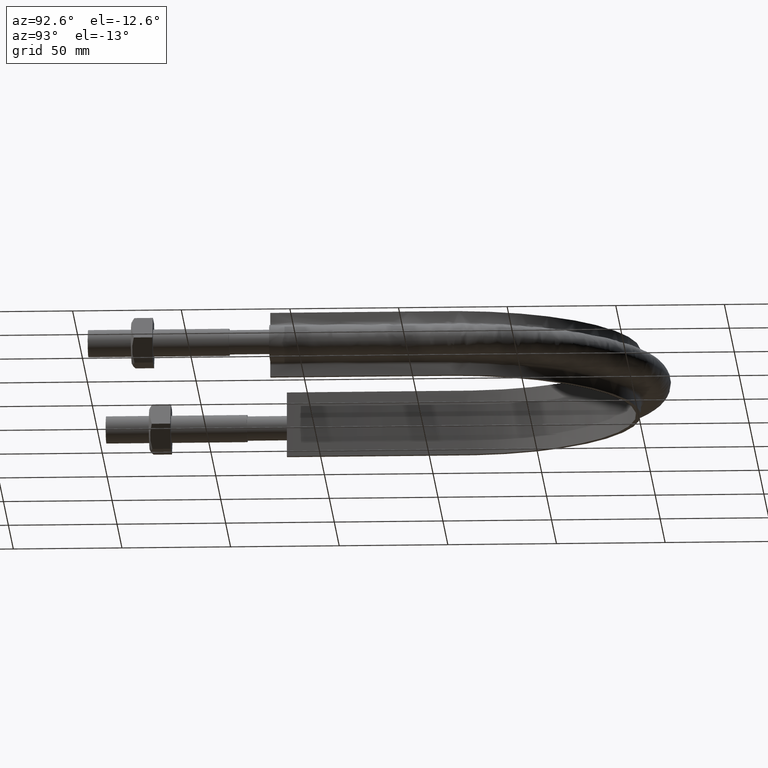
[diagram: clean part render]
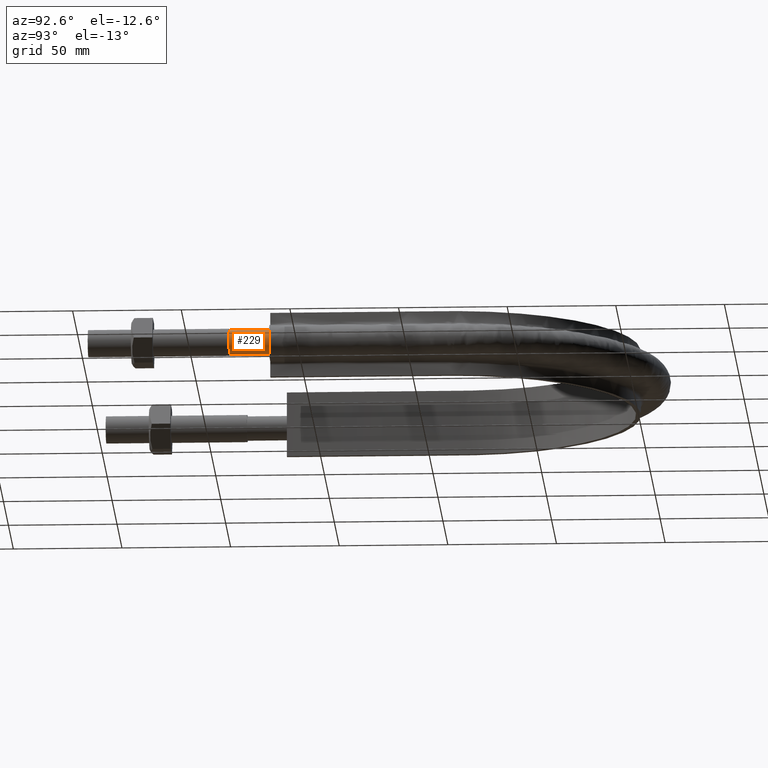
[diagram: same view with one face highlighted and labeled with its STEP entity id]
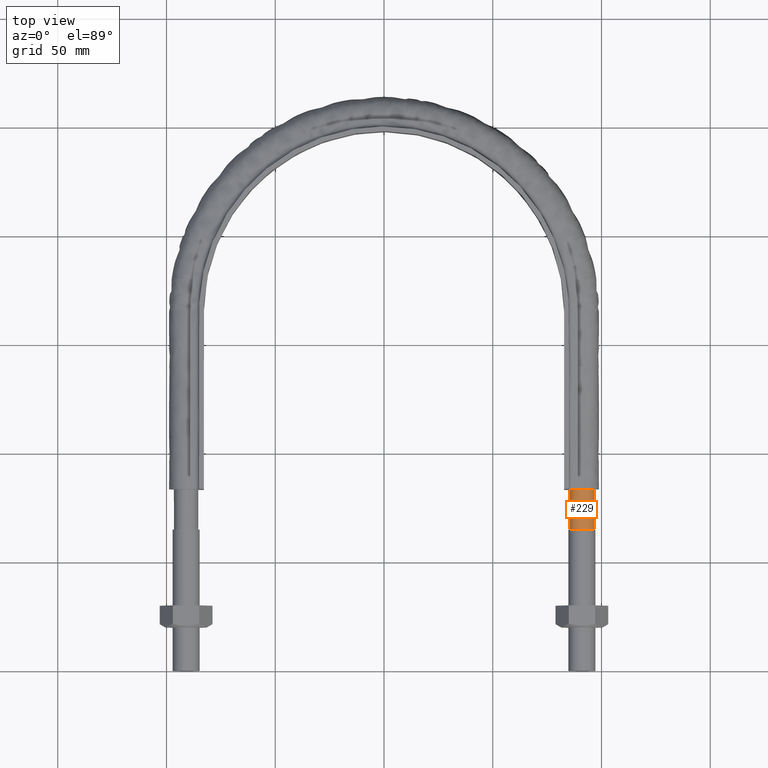
[diagram: same view with one face highlighted and labeled with its STEP entity id]
A machine part, auxiliary view. The second image highlights one B-rep face of the part: STEP entity #229.
A second angle (top view) of the same face is appended — the face is thin or edge-on in the first view.
In plain terms, the highlighted cylindrical surface (bore or boss wall) has radius 5.6 mm, axis along (0, 1, -0).
Its self-contained STEP definition (entity closure, byte-faithful):
#229 = ADVANCED_FACE( '', ( #285, #286 ), #287, .T. );
#285 = FACE_OUTER_BOUND( '', #1286, .T. );
#286 = FACE_OUTER_BOUND( '', #1287, .T. );
#287 = CYLINDRICAL_SURFACE( '', #1288, 5.59999999999999 );
#1286 = EDGE_LOOP( '', ( #1453, #1454, #1455, #1456, #1457, #1458, #1459, #1460 ) );
#1287 = EDGE_LOOP( '', ( #1461 ) );
#1288 = AXIS2_PLACEMENT_3D( '', #1462, #1463, #1464 );
#1453 = ORIENTED_EDGE( '', *, *, #1680, .F. );
#1454 = ORIENTED_EDGE( '', *, *, #1679, .F. );
#1455 = ORIENTED_EDGE( '', *, *, #1678, .F. );
#1456 = ORIENTED_EDGE( '', *, *, #1677, .F. );
#1457 = ORIENTED_EDGE( '', *, *, #1684, .F. );
#1458 = ORIENTED_EDGE( '', *, *, #1683, .F. );
#1459 = ORIENTED_EDGE( '', *, *, #1682, .F. );
#1460 = ORIENTED_EDGE( '', *, *, #1681, .F. );
#1461 = ORIENTED_EDGE( '', *, *, #1685, .T. );
#1462 = CARTESIAN_POINT( '', ( 91.0000000000000, 83.5000000000000, -1.51545036285519E-014 ) );
#1463 = DIRECTION( '', ( 2.44921270764475E-016, 1.00000000000000, -3.06151588455594E-016 ) );
#1464 = DIRECTION( '', ( 1.00000000000000, -2.44921270764475E-016, 0.000000000000000 ) );
#1677 = EDGE_CURVE( '', #1779, #1780, #1781, .T. );
#1678 = EDGE_CURVE( '', #1780, #1782, #1783, .T. );
#1679 = EDGE_CURVE( '', #1782, #1784, #1785, .T. );
#1680 = EDGE_CURVE( '', #1784, #1786, #1787, .T. );
#1681 = EDGE_CURVE( '', #1786, #1788, #1789, .T. );
#1682 = EDGE_CURVE( '', #1788, #1790, #1791, .T. );
#1683 = EDGE_CURVE( '', #1790, #1792, #1793, .T. );
#1684 = EDGE_CURVE( '', #1792, #1779, #1794, .T. );
#1685 = EDGE_CURVE( '', #1795, #1795, #1796, .F. );
#1779 = VERTEX_POINT( '', #2101 );
#1780 = VERTEX_POINT( '', #2102 );
#1781 = B_SPLINE_CURVE_WITH_KNOTS( '', 3, ( #2103, #2104, #2105, #2106 ), .UNSPECIFIED., .F., .F., ( 4, 4 ), ( 0.000000000000000, 1.00000000000000 ), .UNSPECIFIED. );
#1782 = VERTEX_POINT( '', #2107 );
#1783 = B_SPLINE_CURVE_WITH_KNOTS( '', 3, ( #2108, #2109, #2110, #2111 ), .UNSPECIFIED., .F., .F., ( 4, 4 ), ( 0.000000000000000, 1.00000000000000 ), .UNSPECIFIED. );
#1784 = VERTEX_POINT( '', #2112 );
#1785 = B_SPLINE_CURVE_WITH_KNOTS( '', 3, ( #2113, #2114, #2115, #2116 ), .UNSPECIFIED., .F., .F., ( 4, 4 ), ( 0.000000000000000, 1.00000000000000 ), .UNSPECIFIED. );
#1786 = VERTEX_POINT( '', #2117 );
#1787 = B_SPLINE_CURVE_WITH_KNOTS( '', 3, ( #2118, #2119, #2120, #2121 ), .UNSPECIFIED., .F., .F., ( 4, 4 ), ( 0.000000000000000, 1.00000000000000 ), .UNSPECIFIED. );
#1788 = VERTEX_POINT( '', #2122 );
#1789 = B_SPLINE_CURVE_WITH_KNOTS( '', 3, ( #2123, #2124, #2125, #2126 ), .UNSPECIFIED., .F., .F., ( 4, 4 ), ( 0.000000000000000, 1.00000000000000 ), .UNSPECIFIED. );
#1790 = VERTEX_POINT( '', #2127 );
#1791 = B_SPLINE_CURVE_WITH_KNOTS( '', 3, ( #2128, #2129, #2130, #2131 ), .UNSPECIFIED., .F., .F., ( 4, 4 ), ( 0.000000000000000, 1.00000000000000 ), .UNSPECIFIED. );
#1792 = VERTEX_POINT( '', #2132 );
#1793 = B_SPLINE_CURVE_WITH_KNOTS( '', 3, ( #2133, #2134, #2135, #2136 ), .UNSPECIFIED., .F., .F., ( 4, 4 ), ( 0.000000000000000, 1.00000000000000 ), .UNSPECIFIED. );
#1794 = B_SPLINE_CURVE_WITH_KNOTS( '', 3, ( #2137, #2138, #2139, #2140 ), .UNSPECIFIED., .F., .F., ( 4, 4 ), ( 0.000000000000000, 1.00000000000000 ), .UNSPECIFIED. );
#1795 = VERTEX_POINT( '', #2141 );
#1796 = CIRCLE( '', #2142, 5.59999999999999 );
#2101 = CARTESIAN_POINT( '', ( 85.4000000000000, 83.5000000000003, -6.57793329442030E-014 ) );
#2102 = CARTESIAN_POINT( '', ( 87.0402020253551, 83.5000000000000, 3.95979797464437 ) );
#2103 = CARTESIAN_POINT( '', ( 85.4000000000000, 83.5000000000003, -1.08420217248550E-016 ) );
#2104 = CARTESIAN_POINT( '', ( 85.4000000000000, 83.5000000000003, 1.46274169979682 ) );
#2105 = CARTESIAN_POINT( '', ( 86.0058874503045, 83.5000000000003, 2.92548339959365 ) );
#2106 = CARTESIAN_POINT( '', ( 87.0402020253551, 83.5000000000003, 3.95979797464439 ) );
#2107 = CARTESIAN_POINT( '', ( 90.9999999999999, 83.5000000000000, 5.59999999999998 ) );
#2108 = CARTESIAN_POINT( '', ( 87.0402020253789, 83.5000000000003, 3.95979797466821 ) );
#2109 = CARTESIAN_POINT( '', ( 88.0745166004340, 83.5000000000003, 4.99411254971025 ) );
#2110 = CARTESIAN_POINT( '', ( 89.5372583002356, 83.5000000000003, 5.60000000000889 ) );
#2111 = CARTESIAN_POINT( '', ( 91.0000000000360, 83.5000000000003, 5.59999999999961 ) );
#2112 = CARTESIAN_POINT( '', ( 94.9597979746584, 83.5000000000000, 3.95979797463088 ) );
#2113 = CARTESIAN_POINT( '', ( 90.9999999999999, 83.5000000000003, 5.59999999999999 ) );
#2114 = CARTESIAN_POINT( '', ( 92.4627416998033, 83.5000000000003, 5.60000000000002 ) );
#2115 = CARTESIAN_POINT( '', ( 93.9254833996068, 83.5000000000003, 4.99411254969010 ) );
#2116 = CARTESIAN_POINT( '', ( 94.9597979746584, 83.5000000000003, 3.95979797463099 ) );
#2117 = CARTESIAN_POINT( '', ( 96.6000000000000, 83.5000000000000, -1.51545036285519E-014 ) );
#2118 = CARTESIAN_POINT( '', ( 94.9597979746585, 83.5000000000003, 3.95979797463086 ) );
#2119 = CARTESIAN_POINT( '', ( 95.9941125497084, 83.5000000000003, 2.92548339957330 ) );
#2120 = CARTESIAN_POINT( '', ( 96.6000000000103, 83.5000000000003, 1.46274169976572 ) );
#2121 = CARTESIAN_POINT( '', ( 96.5999999999998, 83.5000000000003, -3.92493902395374E-011 ) );
#2122 = CARTESIAN_POINT( '', ( 94.9597979746457, 83.5000000000000, -3.95979797464368 ) );
#2123 = CARTESIAN_POINT( '', ( 96.6000000000000, 83.5000000000002, -1.81387953856294E-011 ) );
#2124 = CARTESIAN_POINT( '', ( 96.5999999999950, 83.5000000000002, -1.46274169981296 ) );
#2125 = CARTESIAN_POINT( '', ( 95.9941125496867, 83.5000000000002, -2.92548339960903 ) );
#2126 = CARTESIAN_POINT( '', ( 94.9597979746316, 83.5000000000002, -3.95979797465745 ) );
#2127 = CARTESIAN_POINT( '', ( 91.0000000000002, 83.5000000000000, -5.60000000000001 ) );
#2128 = CARTESIAN_POINT( '', ( 94.9597979746456, 83.5000000000002, -3.95979797464374 ) );
#2129 = CARTESIAN_POINT( '', ( 93.9254833995951, 83.5000000000002, -4.99411254969479 ) );
#2130 = CARTESIAN_POINT( '', ( 92.4627416997984, 83.5000000000002, -5.59999999999958 ) );
#2131 = CARTESIAN_POINT( '', ( 91.0000000000016, 83.5000000000002, -5.60000000000000 ) );
#2132 = CARTESIAN_POINT( '', ( 87.0402020253615, 83.5000000000000, -3.95979797465083 ) );
#2133 = CARTESIAN_POINT( '', ( 91.0000000000002, 83.5000000000003, -5.59999999999999 ) );
#2134 = CARTESIAN_POINT( '', ( 89.5372583002061, 83.5000000000003, -5.60000000000004 ) );
#2135 = CARTESIAN_POINT( '', ( 88.0745166004121, 83.5000000000003, -4.99411254969791 ) );
#2136 = CARTESIAN_POINT( '', ( 87.0402020253617, 83.5000000000003, -3.95979797465094 ) );
#2137 = CARTESIAN_POINT( '', ( 87.0402020253615, 83.5000000000003, -3.95979797465081 ) );
#2138 = CARTESIAN_POINT( '', ( 86.0058874503070, 83.5000000000003, -2.92548339959970 ) );
#2139 = CARTESIAN_POINT( '', ( 85.4000000000006, 83.5000000000003, -1.46274169980130 ) );
#2140 = CARTESIAN_POINT( '', ( 85.3999999999999, 83.5000000000003, -3.14136737455950E-012 ) );
#2141 = CARTESIAN_POINT( '', ( 91.0000000000000, 65.0000000000000, -5.60000000000000 ) );
#2142 = AXIS2_PLACEMENT_3D( '', #2397, #2398, #2399 );
#2397 = CARTESIAN_POINT( '', ( 91.0000000000000, 65.0000000000000, -9.49069924212341E-015 ) );
#2398 = DIRECTION( '', ( -2.44921270764475E-016, -1.00000000000000, 3.06151588455594E-016 ) );
#2399 = DIRECTION( '', ( 0.000000000000000, -3.06151588455594E-016, -1.00000000000000 ) );